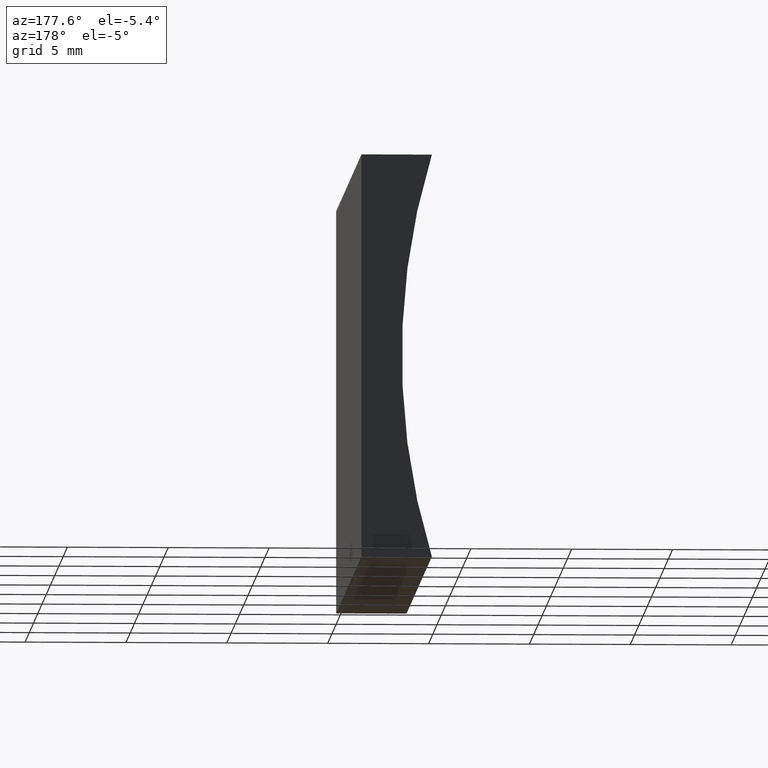
[diagram: clean part render]
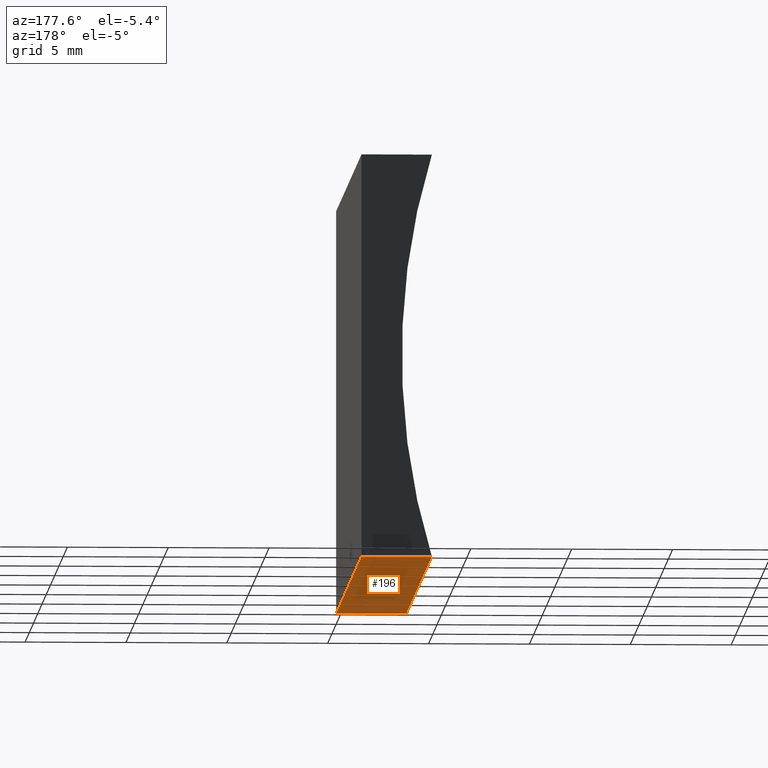
[diagram: same view with one face highlighted and labeled with its STEP entity id]
A machine part, auxiliary view. The second image highlights one B-rep face of the part: STEP entity #196.
In plain terms, the highlighted planar face has unit normal (0, -0, 1).
Its self-contained STEP definition (entity closure, byte-faithful):
#5 = LINE ( 'NONE', #142, #27 ) ;
#14 = VECTOR ( 'NONE', #160, 1000.000000000000000 ) ;
#17 = LINE ( 'NONE', #92, #14 ) ;
#20 = DIRECTION ( 'NONE',  ( -1.000000000000000000, 0.0000000000000000000, 1.989461202798745500E-015 ) ) ;
#27 = VECTOR ( 'NONE', #139, 1000.000000000000000 ) ;
#29 = CARTESIAN_POINT ( 'NONE',  ( 0.0000000000000000000, 30.00000000000000000, 0.0000000000000000000 ) ) ;
#31 = PLANE ( 'NONE',  #166 ) ;
#39 = EDGE_CURVE ( 'NONE', #201, #79, #93, .T. ) ;
#54 = VERTEX_POINT ( 'NONE', #74 ) ;
#57 = ORIENTED_EDGE ( 'NONE', *, *, #185, .F. ) ;
#61 = VERTEX_POINT ( 'NONE', #67 ) ;
#67 = CARTESIAN_POINT ( 'NONE',  ( -3.487825695794269300, 30.00000000000000000, 6.938893903907228400E-015 ) ) ;
#68 = DIRECTION ( 'NONE',  ( -0.0000000000000000000, -1.000000000000000000, -0.0000000000000000000 ) ) ;
#70 = CARTESIAN_POINT ( 'NONE',  ( 0.0000000000000000000, 30.00000000000000000, 0.0000000000000000000 ) ) ;
#74 = CARTESIAN_POINT ( 'NONE',  ( -3.487825695794269300, 0.0000000000000000000, 6.938893903907228400E-015 ) ) ;
#77 = CARTESIAN_POINT ( 'NONE',  ( 0.0000000000000000000, 30.00000000000000000, 0.0000000000000000000 ) ) ;
#78 = DIRECTION ( 'NONE',  ( 1.989461202798745500E-015, -0.0000000000000000000, 1.000000000000000000 ) ) ;
#79 = VERTEX_POINT ( 'NONE', #129 ) ;
#83 = LINE ( 'NONE', #29, #91 ) ;
#89 = ORIENTED_EDGE ( 'NONE', *, *, #155, .T. ) ;
#91 = VECTOR ( 'NONE', #20, 1000.000000000000000 ) ;
#92 = CARTESIAN_POINT ( 'NONE',  ( -3.487825695794269300, 30.00000000000000000, 6.938893903907228400E-015 ) ) ;
#93 = LINE ( 'NONE', #122, #104 ) ;
#94 = ORIENTED_EDGE ( 'NONE', *, *, #171, .F. ) ;
#102 = EDGE_LOOP ( 'NONE', ( #89, #94, #57, #182 ) ) ;
#104 = VECTOR ( 'NONE', #68, 1000.000000000000000 ) ;
#121 = FACE_OUTER_BOUND ( 'NONE', #102, .T. ) ;
#122 = CARTESIAN_POINT ( 'NONE',  ( 0.0000000000000000000, 30.00000000000000000, 0.0000000000000000000 ) ) ;
#129 = CARTESIAN_POINT ( 'NONE',  ( 0.0000000000000000000, 0.0000000000000000000, 0.0000000000000000000 ) ) ;
#139 = DIRECTION ( 'NONE',  ( -1.000000000000000000, 0.0000000000000000000, 1.989461202798745500E-015 ) ) ;
#142 = CARTESIAN_POINT ( 'NONE',  ( 0.0000000000000000000, 0.0000000000000000000, 0.0000000000000000000 ) ) ;
#153 = DIRECTION ( 'NONE',  ( 1.000000000000000000, 0.0000000000000000000, -1.989461202798745500E-015 ) ) ;
#155 = EDGE_CURVE ( 'NONE', #79, #54, #5, .T. ) ;
#160 = DIRECTION ( 'NONE',  ( -0.0000000000000000000, -1.000000000000000000, -0.0000000000000000000 ) ) ;
#166 = AXIS2_PLACEMENT_3D ( 'NONE', #77, #78, #153 ) ;
#171 = EDGE_CURVE ( 'NONE', #61, #54, #17, .T. ) ;
#182 = ORIENTED_EDGE ( 'NONE', *, *, #39, .T. ) ;
#185 = EDGE_CURVE ( 'NONE', #201, #61, #83, .T. ) ;
#196 = ADVANCED_FACE ( 'NONE', ( #121 ), #31, .F. ) ;
#201 = VERTEX_POINT ( 'NONE', #70 ) ;